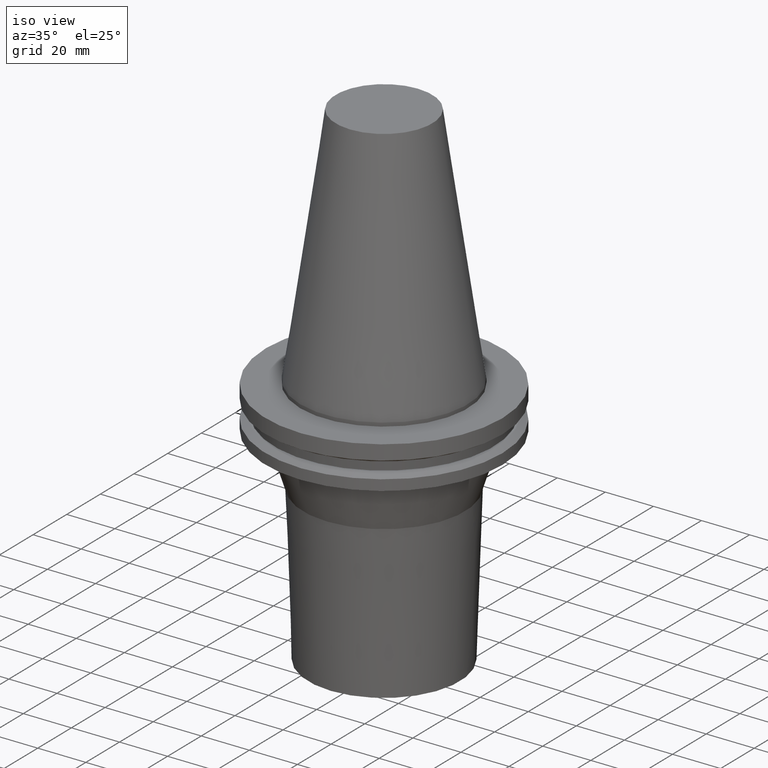
[diagram: clean part render]
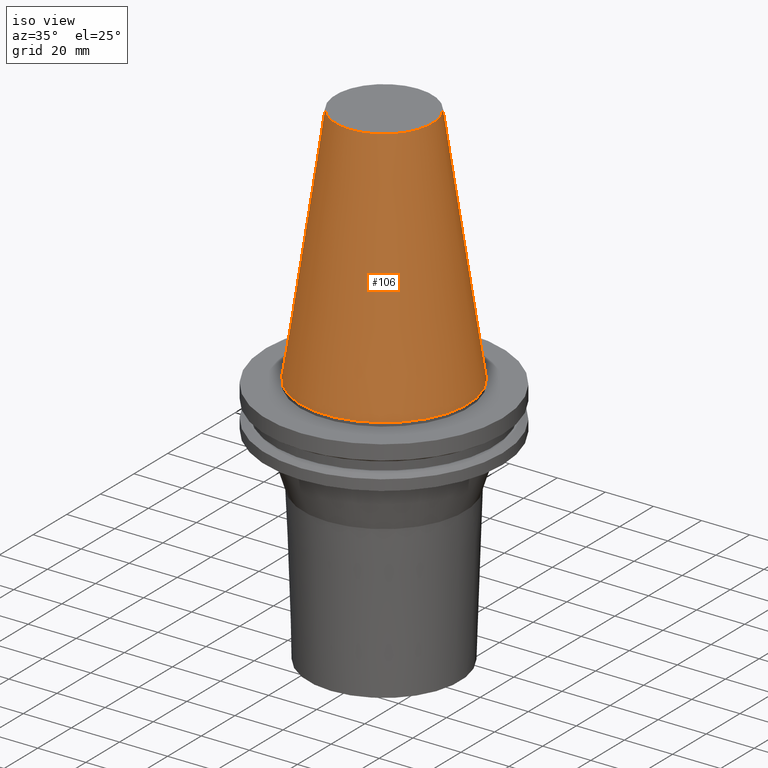
[diagram: same view with one face highlighted and labeled with its STEP entity id]
A machine part, iso view. The second image highlights one B-rep face of the part: STEP entity #106.
In plain terms, the highlighted conical surface has half-angle 8.297 deg.
Its self-contained STEP definition (entity closure, byte-faithful):
#63=EDGE_CURVE('Unnamed[1]',#163,#163,#164,.T.);
#106=ADVANCED_FACE('Unnamed[1]',(#229,#230),#231,.T.);
#111=EDGE_CURVE('Unnamed[1]',#238,#238,#239,.T.);
#163=VERTEX_POINT('',#299);
#164=CIRCLE('',#300,20.1083333297217);
#229=FACE_BOUND('',#380,.T.);
#230=FACE_BOUND('',#381,.T.);
#231=CONICAL_SURFACE('',#382,27.5166666648608,0.144812498273746);
#238=VERTEX_POINT('',#391);
#239=CIRCLE('',#392,34.925);
#299=CARTESIAN_POINT('',(-6.22120573966855E-015,20.1083333297217,101.6));
#300=AXIS2_PLACEMENT_3D('',#453,#454,#455);
#380=EDGE_LOOP('',(#526));
#381=EDGE_LOOP('',(#527));
#382=AXIS2_PLACEMENT_3D('',#528,#529,#530);
#391=CARTESIAN_POINT('',(-4.30483861169435E-031,34.925,4.27707894602213E-015));
#392=AXIS2_PLACEMENT_3D('',#537,#538,#539);
#453=CARTESIAN_POINT('',(-6.22120573966855E-015,4.21273945501842E-015,101.6));
#454=DIRECTION('',(6.12323399573677E-017,-1.22384385729695E-016,-1.0));
#455=DIRECTION('',(2.66672958170481E-033,1.0,-1.22384385729695E-016));
#526=ORIENTED_EDGE('',*,*,#111,.F.);
#527=ORIENTED_EDGE('',*,*,#63,.T.);
#528=CARTESIAN_POINT('',(-3.11060286983428E-015,-2.00438734005193E-015,50.8));
#529=DIRECTION('',(6.12323399573677E-017,-1.22384385729741E-016,-1.0));
#530=DIRECTION('',(2.66672958170824E-033,1.0,-1.22384385729741E-016));
#537=CARTESIAN_POINT('',(-8.7016388700601E-031,-8.22151413512229E-015,1.4210854715202E-014));
#538=DIRECTION('',(6.12323399573676E-017,-1.22384385729721E-016,-1.0));
#539=DIRECTION('',(2.66672958170765E-033,1.0,-1.22384385729721E-016));